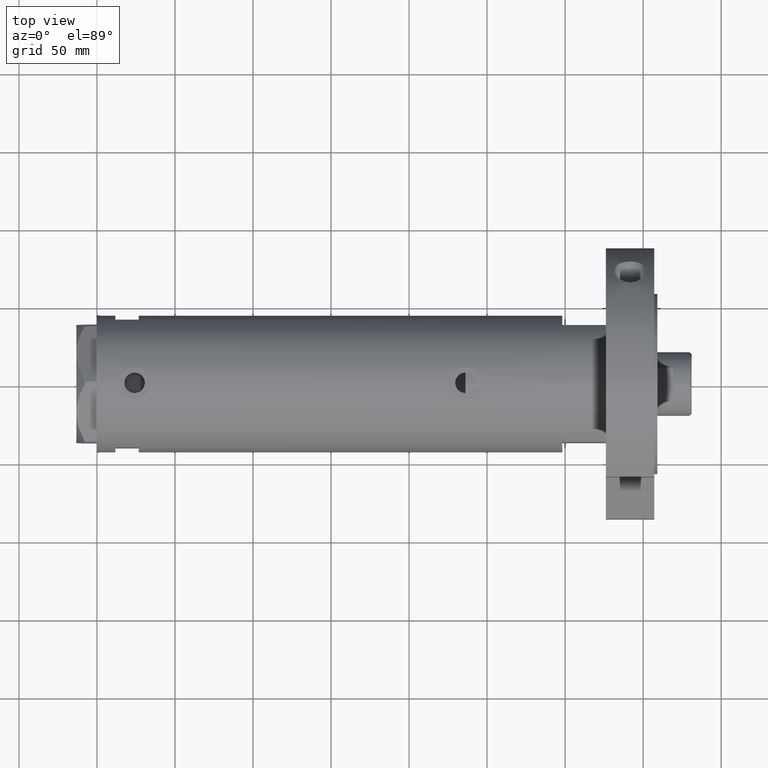
[diagram: clean part render]
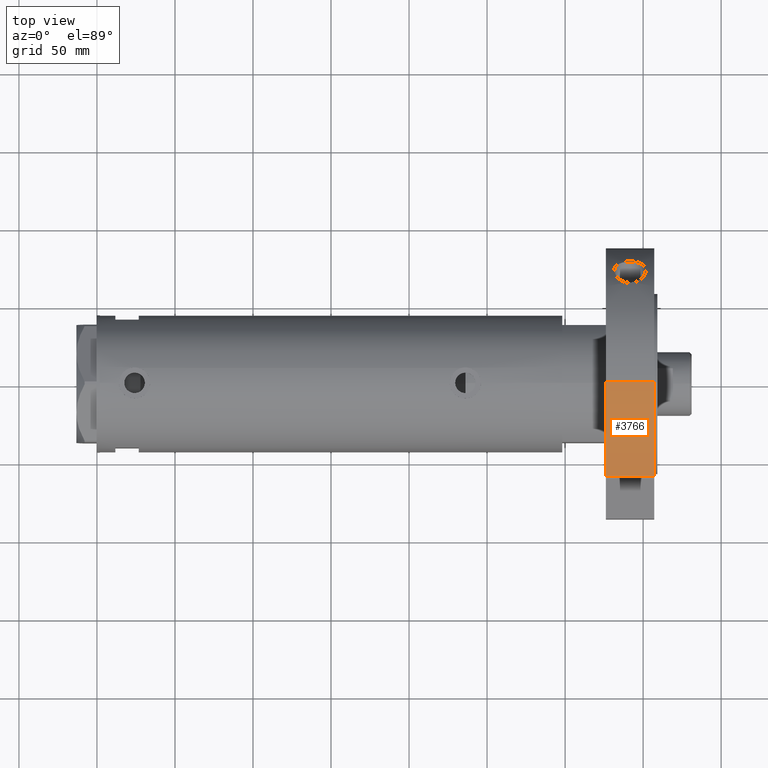
[diagram: same view with one face highlighted and labeled with its STEP entity id]
A machine part, top view. The second image highlights one B-rep face of the part: STEP entity #3766.
In plain terms, the highlighted cylindrical surface (partial cylindrical patch) has radius 87 mm, axis along (-1, -0, 0).
Its self-contained STEP definition (entity closure, byte-faithful):
#144 = CYLINDRICAL_SURFACE ( 'NONE', #5930, 87.00000000000000000 ) ;
#153 = VERTEX_POINT ( 'NONE', #1497 ) ;
#298 = VECTOR ( 'NONE', #3087, 1000.000000000000000 ) ;
#473 = ORIENTED_EDGE ( 'NONE', *, *, #6694, .T. ) ;
#626 = LINE ( 'NONE', #2941, #298 ) ;
#701 = VERTEX_POINT ( 'NONE', #5225 ) ;
#947 = EDGE_CURVE ( 'NONE', #6187, #2894, #2862, .T. ) ;
#1284 = CARTESIAN_POINT ( 'NONE',  ( 0.000000000000000000, 0.000000000000000000, 31.00000000000000000 ) ) ;
#1393 = EDGE_LOOP ( 'NONE', ( #6326, #473, #5027, #4721 ) ) ;
#1497 = CARTESIAN_POINT ( 'NONE',  ( 62.54236590573034249, 60.47687547247904405, 0.000000000000000000 ) ) ;
#1521 = DIRECTION ( 'NONE',  ( 1.000000000000000000, 0.000000000000000000, 0.000000000000000000 ) ) ;
#1594 = CARTESIAN_POINT ( 'NONE',  ( 0.000000000000000000, 0.000000000000000000, 31.00000000000000000 ) ) ;
#1859 = DIRECTION ( 'NONE',  ( -0.000000000000000000, -0.000000000000000000, -1.000000000000000000 ) ) ;
#2036 = CIRCLE ( 'NONE', #2999, 87.00000000000000000 ) ;
#2656 = EDGE_CURVE ( 'NONE', #701, #153, #2036, .T. ) ;
#2862 = CIRCLE ( 'NONE', #3225, 87.00000000000000000 ) ;
#2894 = VERTEX_POINT ( 'NONE', #3517 ) ;
#2941 = CARTESIAN_POINT ( 'NONE',  ( 62.54236590573034249, 60.47687547247904405, 0.000000000000000000 ) ) ;
#2981 = DIRECTION ( 'NONE',  ( -0.000000000000000000, -0.000000000000000000, -1.000000000000000000 ) ) ;
#2999 = AXIS2_PLACEMENT_3D ( 'NONE', #3828, #7401, #3370 ) ;
#3087 = DIRECTION ( 'NONE',  ( -0.000000000000000000, -0.000000000000000000, 1.000000000000000000 ) ) ;
#3225 = AXIS2_PLACEMENT_3D ( 'NONE', #1594, #6246, #1521 ) ;
#3370 = DIRECTION ( 'NONE',  ( 1.000000000000000000, 0.000000000000000000, 0.000000000000000000 ) ) ;
#3517 = CARTESIAN_POINT ( 'NONE',  ( 62.54236590573034249, 60.47687547247904405, 31.00000000000000000 ) ) ;
#3643 = CARTESIAN_POINT ( 'NONE',  ( 87.00000000000000000, 1.065442715258197209E-14, 31.00000000000000000 ) ) ;
#3766 = ADVANCED_FACE ( 'NONE', ( #6512 ), #144, .T. ) ;
#3828 = CARTESIAN_POINT ( 'NONE',  ( 0.000000000000000000, 0.000000000000000000, 0.000000000000000000 ) ) ;
#4669 = VECTOR ( 'NONE', #2981, 1000.000000000000000 ) ;
#4721 = ORIENTED_EDGE ( 'NONE', *, *, #6674, .T. ) ;
#5027 = ORIENTED_EDGE ( 'NONE', *, *, #2656, .T. ) ;
#5225 = CARTESIAN_POINT ( 'NONE',  ( 87.00000000000000000, 1.065442715258197209E-14, 0.000000000000000000 ) ) ;
#5803 = DIRECTION ( 'NONE',  ( -1.000000000000000000, 0.000000000000000000, 0.000000000000000000 ) ) ;
#5886 = CARTESIAN_POINT ( 'NONE',  ( 87.00000000000000000, 1.065442715258197209E-14, 31.00000000000000000 ) ) ;
#5930 = AXIS2_PLACEMENT_3D ( 'NONE', #1284, #1859, #5803 ) ;
#6187 = VERTEX_POINT ( 'NONE', #3643 ) ;
#6246 = DIRECTION ( 'NONE',  ( 0.000000000000000000, 0.000000000000000000, 1.000000000000000000 ) ) ;
#6326 = ORIENTED_EDGE ( 'NONE', *, *, #947, .F. ) ;
#6490 = LINE ( 'NONE', #5886, #4669 ) ;
#6512 = FACE_OUTER_BOUND ( 'NONE', #1393, .T. ) ;
#6674 = EDGE_CURVE ( 'NONE', #153, #2894, #626, .T. ) ;
#6694 = EDGE_CURVE ( 'NONE', #6187, #701, #6490, .T. ) ;
#7401 = DIRECTION ( 'NONE',  ( 0.000000000000000000, 0.000000000000000000, 1.000000000000000000 ) ) ;